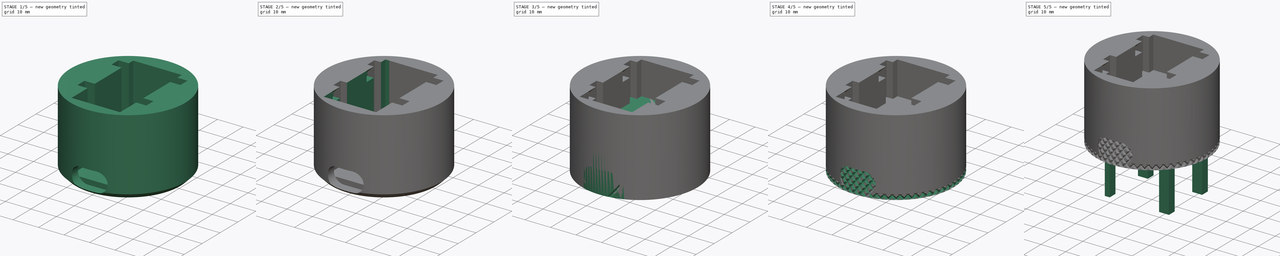
[diagram: build sequence overview — one tinted view per stage of 5, left to right]
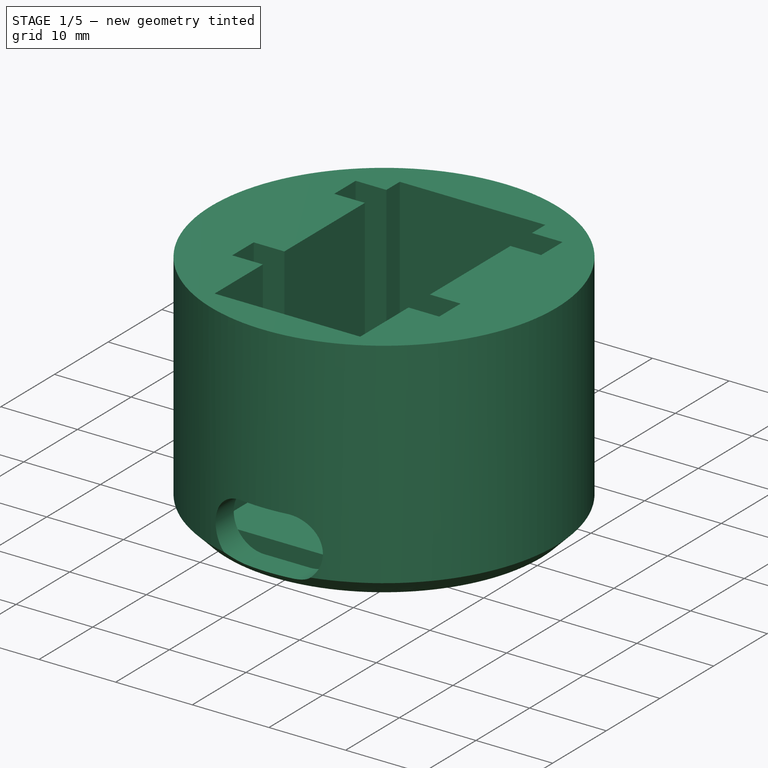
[diagram: stage 1 of 5 — iso view after this stage's code; geometry added in this stage tinted green]
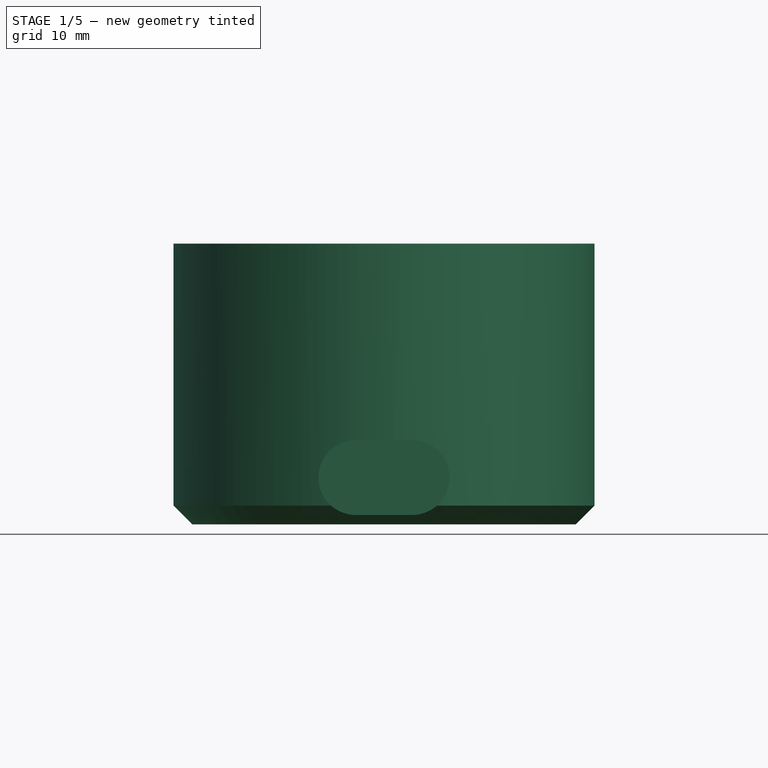
[diagram: stage 1 of 5 — front view after this stage's code; geometry added in this stage tinted green]
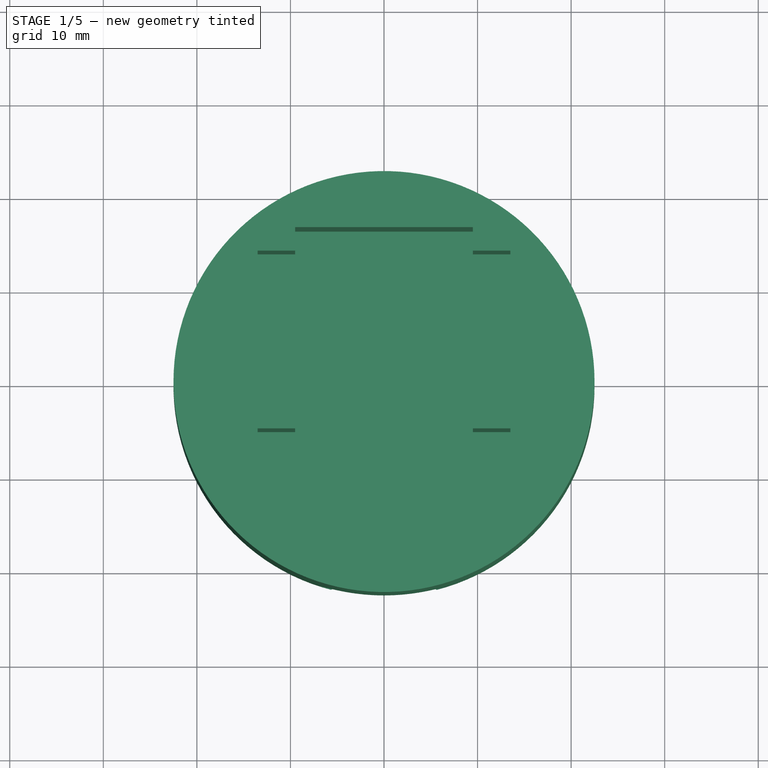
[diagram: stage 1 of 5 — top view after this stage's code; geometry added in this stage tinted green]
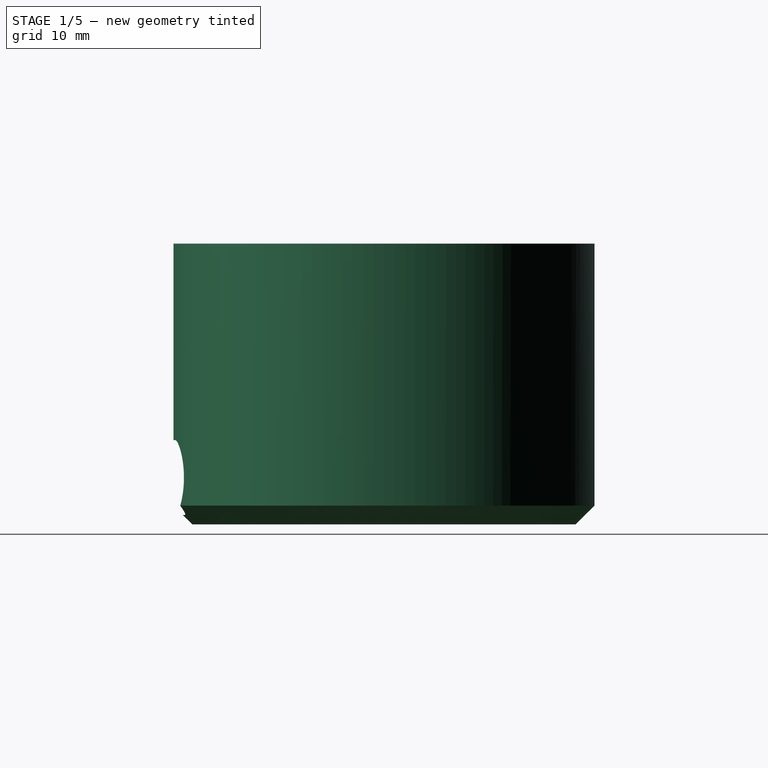
[diagram: stage 1 of 5 — right view after this stage's code; geometry added in this stage tinted green]
FCSTD DOCUMENT  (FreeCAD 0.21R33668 +26 (Git))
Label: VolumeKnob
License: All rights reserved
LicenseURL: http://en.wikipedia.org/wiki/All_rights_reserved
objects: Sketcher::SketchObject×18, PartDesign::Pocket×9, PartDesign::Pad×8, PartDesign::Body×5, PartDesign::Chamfer×4, PartDesign::SubtractiveHelix×2, PartDesign::PolarPattern×1
note: 70 computed .brp shape members not serialized (recipe doc carries the construction recipe); baked Part::Feature solids carry a one-line shape summary decoded from their .brp

FEATURE [PartDesign::Body] Body003  label="EncoderHolderBody"
  Group = -> [Sketch023,Pad007,Sketch024,Pocket015]
  Origin = -> Origin003
  Placement = pos=(0,-0.25,25.5) rot=(0,0,1;0rad)
  Tip = -> Pocket015
FEATURE [Sketcher::SketchObject] Sketch025  label="BodySketch"
  FullyConstrained = true
  MapMode = 5
  Support = -> [XY_Plane004]
  sketch-geometry (1):
    g0: Circle CenterX=0 CenterY=0 CenterZ=0 NormalX=0 NormalY=0 NormalZ=1 AngleXU=0 Radius=22.5
  constraints (2):
    c: Coincident(g0,g-1)
    c: Diameter(g0) = 45
FEATURE [PartDesign::Pad] Pad008
  Direction = (0,0,1)
  Length = 30
  Length2 = 10
  Profile = -> Sketch025
  ReferenceAxis = -> Sketch025 [N_Axis]
  Type = 0
FEATURE [PartDesign::Chamfer] Chamfer006
  Angle = 45
  Base = -> Pad008 [Edge2]
  BaseFeature = -> Pad008
  ChamferType = 0
  FlipDirection = false
  Size = 2
  Size2 = 1
  SupportTransform = false
  UseAllEdges = false
FEATURE [Sketcher::SketchObject] Sketch026  label="PCBPocketSketch001"
  FullyConstrained = true
  MapMode = 5
  Placement = pos=(0,0,30) rot=(0,0,1;0rad)
  Support = -> [Chamfer006]
  sketch-geometry (4):
    g0: LineSegment StartX=-9.5 StartY=16.5 StartZ=0 EndX=9.5 EndY=16.5 EndZ=0
    g1: LineSegment StartX=9.5 StartY=16.5 StartZ=0 EndX=9.5 EndY=-18 EndZ=0
    g2: LineSegment StartX=9.5 StartY=-18 StartZ=0 EndX=-9.5 EndY=-18 EndZ=0
    g3: LineSegment StartX=-9.5 StartY=-18 StartZ=0 EndX=-9.5 EndY=16.5 EndZ=0
  constraints (12):
    c: Horizontal(g0)
    c: Coincident(g1,g0)
    c: Vertical(g1)
    c: Coincident(g2,g1)
    c: Horizontal(g2)
    c: Coincident(g3,g2)
    c: Vertical(g3)
    c: Coincident(g3,g0)
    c: DistanceY(g-1,g0) = 16.5
    c: DistanceY(g1,g-1) = 18
    c: DistanceX(g0,g0) = 19
    c: DistanceX(g-1,g0) = 9.5
FEATURE [PartDesign::Pocket] Pocket016
  BaseFeature = -> Chamfer006
  Direction = (0,0,-1)
  Length = 27
  Length2 = 5
  Profile = -> Sketch026
  ReferenceAxis = -> Sketch026 [N_Axis]
  Type = 0
FEATURE [Sketcher::SketchObject] Sketch027  label="USBPocketSketch027"
  FullyConstrained = true
  MapMode = 5
  Placement = pos=(0,-18,0) rot=(0,0.707107,0.707107;3.14159rad)
  Support = -> [Pocket016]
  sketch-geometry (4):
    g0: ArcOfCircle CenterX=-3 CenterY=5 CenterZ=0 NormalX=0 NormalY=0 NormalZ=1 AngleXU=0 Radius=4 StartAngle=1.5708 EndAngle=4.71239
    g1: ArcOfCircle CenterX=3 CenterY=5 CenterZ=0 NormalX=0 NormalY=0 NormalZ=1 AngleXU=0 Radius=4 StartAngle=4.71239 EndAngle=7.85398
    g2: LineSegment StartX=-3 StartY=1 StartZ=0 EndX=3 EndY=1 EndZ=0
    g3: LineSegment StartX=3 StartY=9 StartZ=0 EndX=-3 EndY=9 EndZ=0
  constraints (10):
    c: Tangent(g0,g2) = -1.5708
    c: Tangent(g2,g1) = -1.5708
    c: Tangent(g1,g3) = -1.5708
    c: Tangent(g3,g0) = -1.5708
    c: Equal(g0,g1)
    c: Horizontal(g2)
    c: DistanceX(g0,g1) = 6
    c: DistanceY(g1,g1) = 8
    c: DistanceY(g-1,g0) = 1
    c: DistanceX(g0,g-1) = 3
FEATURE [PartDesign::Pocket] Pocket017
  BaseFeature = -> Pocket016
  Direction = (0,-1,2e-16)
  Length = 5
  Length2 = 5
  Profile = -> Sketch027
  ReferenceAxis = -> Sketch027 [N_Axis]
  Type = 0
FEATURE [Sketcher::SketchObject] Sketch028  label="AnkerSketch"
  FullyConstrained = true
  MapMode = 5
  Placement = pos=(0,0,30) rot=(0,0,1;0rad)
  Support = -> [Pocket017]
  sketch-geometry (16):
    g0: LineSegment StartX=-13.5 StartY=14 StartZ=0 EndX=-9.5 EndY=14 EndZ=0
    g1: LineSegment StartX=-9.5 StartY=14 StartZ=0 EndX=-9.5 EndY=10 EndZ=0
    g2: LineSegment StartX=-9.5 StartY=10 StartZ=0 EndX=-13.5 EndY=10 EndZ=0
    g3: LineSegment StartX=-13.5 StartY=10 StartZ=0 EndX=-13.5 EndY=14 EndZ=0
    g4: LineSegment StartX=-13.5 StartY=-5 StartZ=0 EndX=-9.5 EndY=-5 EndZ=0
    g5: LineSegment StartX=-9.5 StartY=-5 StartZ=0 EndX=-9.5 EndY=-9 EndZ=0
    g6: LineSegment StartX=-9.5 StartY=-9 StartZ=0 EndX=-13.5 EndY=-9 EndZ=0
    g7: LineSegment StartX=-13.5 StartY=-9 StartZ=0 EndX=-13.5 EndY=-5 EndZ=0
    g8: LineSegment StartX=9.5 StartY=-5 StartZ=0 EndX=13.5 EndY=-5 EndZ=0
    g9: LineSegment StartX=13.5 StartY=-5 StartZ=0 EndX=13.5 EndY=-9 EndZ=0
    g10: LineSegment StartX=13.5 StartY=-9 StartZ=0 EndX=9.5 EndY=-9 EndZ=0
    g11: LineSegment StartX=9.5 StartY=-9 StartZ=0 EndX=9.5 EndY=-5 EndZ=0
    g12: LineSegment StartX=9.5 StartY=14 StartZ=0 EndX=13.5 EndY=14 EndZ=0
    g13: LineSegment StartX=13.5 StartY=14 StartZ=0 EndX=13.5 EndY=10 EndZ=0
    g14: LineSegment StartX=13.5 StartY=10 StartZ=0 EndX=9.5 EndY=10 EndZ=0
    g15: LineSegment StartX=9.5 StartY=10 StartZ=0 EndX=9.5 EndY=14 EndZ=0
  constraints (48):
    c: Coincident(g0,g1)
    c: Coincident(g1,g2)
    c: Coincident(g2,g3)
    c: Coincident(g3,g0)
    c: Horizontal(g0)
    c: Horizontal(g2)
    c: Vertical(g1)
    c: Vertical(g3)
    c: Coincident(g4,g5)
    c: Coincident(g5,g6)
    c: Coincident(g6,g7)
    c: Coincident(g7,g4)
    c: Horizontal(g4)
    c: Horizontal(g6)
    c: Vertical(g5)
    c: Vertical(g7)
    c: Coincident(g8,g9)
    c: Coincident(g9,g10)
    c: Coincident(g10,g11)
    c: Coincident(g11,g8)
    c: Horizontal(g8)
    c: Horizontal(g10)
    c: Vertical(g9)
    c: Vertical(g11)
    c: Coincident(g12,g13)
    c: Coincident(g13,g14)
    c: Coincident(g14,g15)
    c: Coincident(g15,g12)
    c: Horizontal(g12)
    c: Horizontal(g14)
    c: Vertical(g13)
    c: Vertical(g15)
    c: DistanceX(g0,g0) = 4
    c: Equal(g0,g3)
    c: Equal(g0,g15)
    c: Equal(g0,g12)
    c: Equal(g0,g4)
    c: Equal(g0,g7)
    c: Equal(g0,g8)
    c: Equal(g0,g9)
    c: DistanceX(g1,g-1) = 9.5
    c: DistanceX(g-1,g14) = 9.5
    c: DistanceX(g4,g-1) = 9.5
    c: DistanceX(g-1,g8) = 9.5
    c: DistanceY(g-1,g14) = 10
    c: DistanceY(g8,g-1) = 5
    c: DistanceY(g4,g-1) = 5
    c: DistanceY(g-1,g1) = 10
FEATURE [PartDesign::Pocket] Pocket018
  BaseFeature = -> Pocket017
  Direction = (0,0,-1)
  Length = 23
  Length2 = 5
  Profile = -> Sketch028
  ReferenceAxis = -> Sketch028 [N_Axis]
  Type = 0
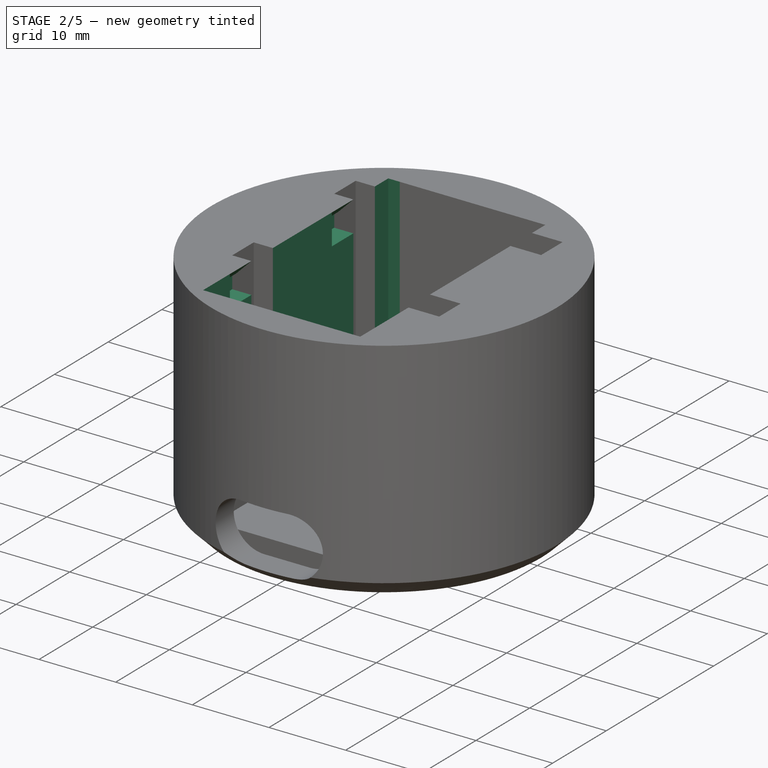
[diagram: stage 2 of 5 — iso view after this stage's code; geometry added in this stage tinted green]
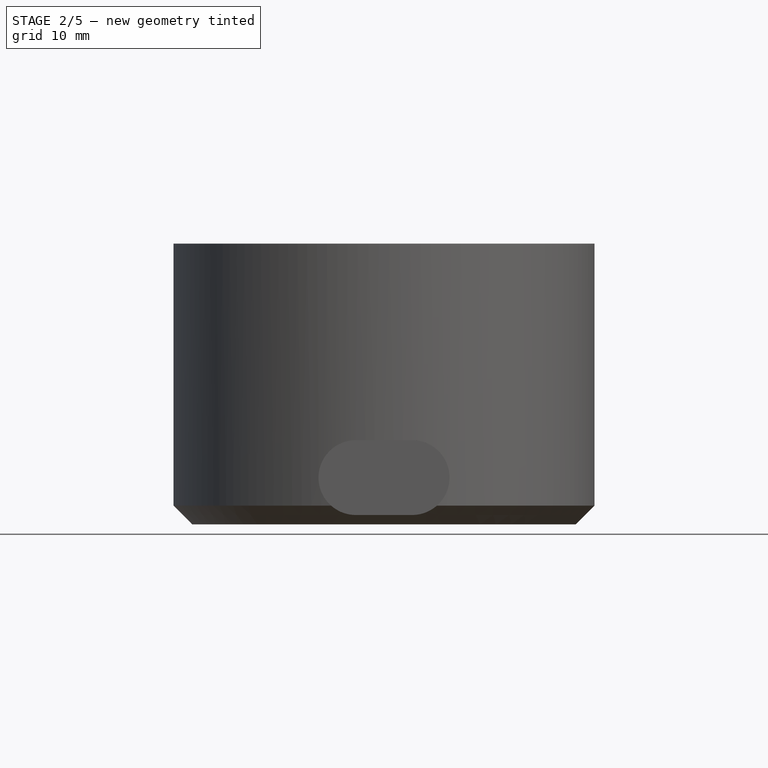
[diagram: stage 2 of 5 — front view after this stage's code; geometry added in this stage tinted green]
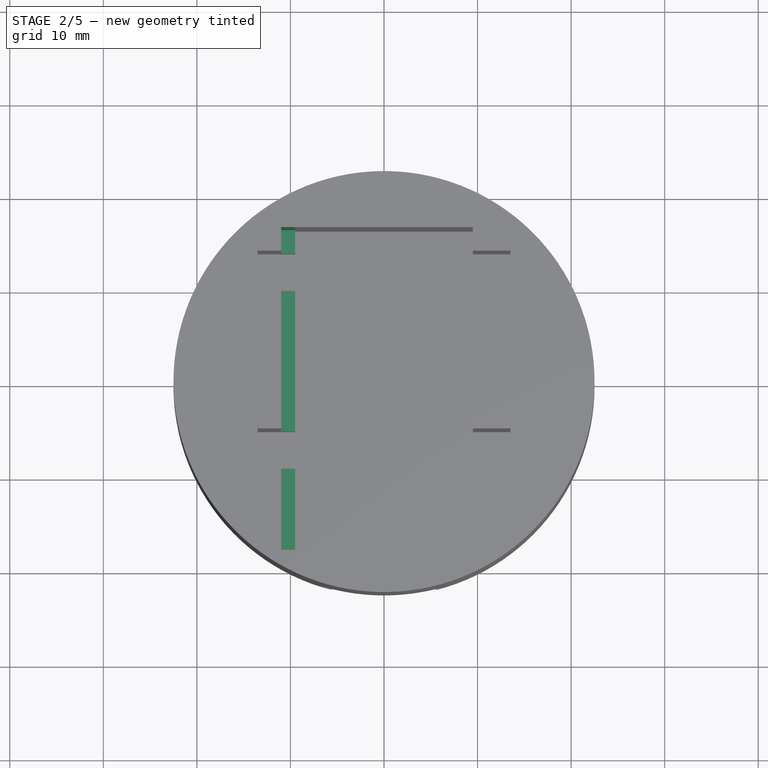
[diagram: stage 2 of 5 — top view after this stage's code; geometry added in this stage tinted green]
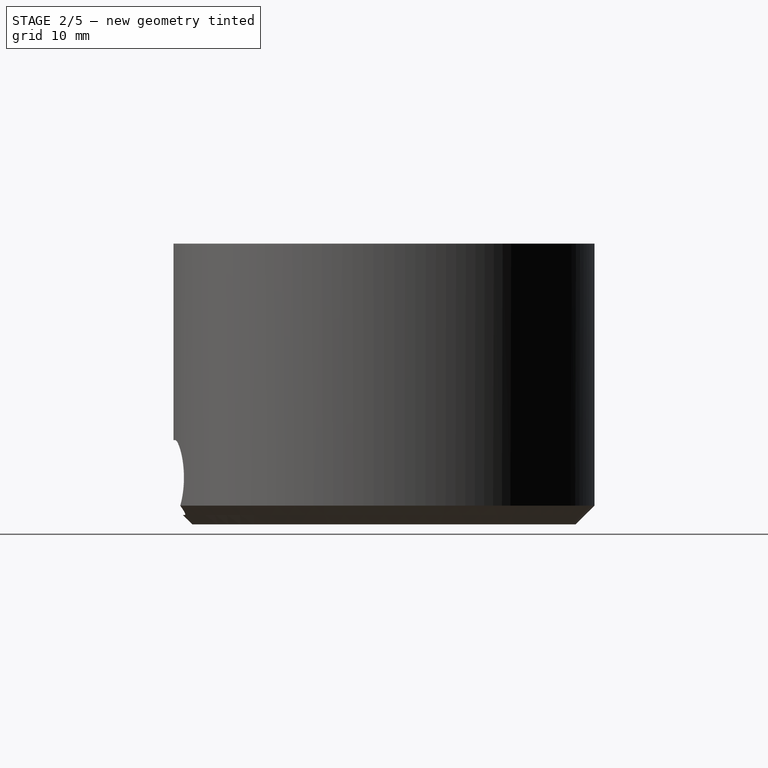
[diagram: stage 2 of 5 — right view after this stage's code; geometry added in this stage tinted green]
FEATURE [Sketcher::SketchObject] Sketch029
  FullyConstrained = true
  MapMode = 5
  Placement = pos=(-9.5,0,0) rot=(0.57735,0.57735,0.57735;2.0944rad)
  Support = -> [Pocket018]
  sketch-geometry (12):
    g0: LineSegment StartX=-13 StartY=26 StartZ=0 EndX=-9 EndY=26 EndZ=0
    g1: LineSegment StartX=-9 StartY=26 StartZ=0 EndX=-9 EndY=28 EndZ=0
    g2: LineSegment StartX=-9 StartY=28 StartZ=0 EndX=-13 EndY=28 EndZ=0
    g3: LineSegment StartX=-13 StartY=28 StartZ=0 EndX=-13 EndY=26 EndZ=0
    g4: LineSegment StartX=6 StartY=28 StartZ=0 EndX=10 EndY=28 EndZ=0
    g5: LineSegment StartX=10 StartY=28 StartZ=0 EndX=10 EndY=26 EndZ=0
    g6: LineSegment StartX=10 StartY=26 StartZ=0 EndX=6 EndY=26 EndZ=0
    g7: LineSegment StartX=6 StartY=26 StartZ=0 EndX=6 EndY=28 EndZ=0
    g8: LineSegment StartX=6 StartY=7 StartZ=0 EndX=10 EndY=7 EndZ=0
    g9: LineSegment StartX=10 StartY=7 StartZ=0 EndX=10 EndY=9 EndZ=0
    g10: LineSegment StartX=10 StartY=9 StartZ=0 EndX=6 EndY=9 EndZ=0
    g11: LineSegment StartX=6 StartY=9 StartZ=0 EndX=6 EndY=7 EndZ=0
  constraints (36):
    c: Coincident(g0,g1)
    c: Coincident(g1,g2)
    c: Coincident(g2,g3)
    c: Coincident(g3,g0)
    c: Horizontal(g0)
    c: Horizontal(g2)
    c: Vertical(g1)
    c: Vertical(g3)
    c: Coincident(g4,g5)
    c: Coincident(g5,g6)
    c: Coincident(g6,g7)
    c: Coincident(g7,g4)
    c: Horizontal(g4)
    c: Horizontal(g6)
    c: Vertical(g5)
    c: Vertical(g7)
    c: Coincident(g8,g9)
    c: Coincident(g9,g10)
    c: Coincident(g10,g11)
    c: Coincident(g11,g8)
    c: Horizontal(g8)
    c: Horizontal(g10)
    c: Vertical(g9)
    c: Vertical(g11)
    c: DistanceX(g4,g4) = 4
    c: DistanceY(g7,g7) = 2
    c: Equal(g4,g0)
    c: Equal(g4,g8)
    c: Equal(g7,g11)
    c: DistanceY(g-1,g6) = 26
    c: DistanceX(g-1,g6) = 6
    c: DistanceX(g1,g-1) = 9
    c: DistanceY(g-1,g1) = 28
    c: DistanceX(g-1,g10) = 6
    c: DistanceY(g-1,g10) = 9
    c: Equal(g7,g3)
FEATURE [PartDesign::Pocket] Pocket019
  BaseFeature = -> Pocket018
  Direction = (-1,0,0)
  Length = 4
  Length2 = 5
  Profile = -> Sketch029
  ReferenceAxis = -> Sketch029 [N_Axis]
  Type = 0
FEATURE [Sketcher::SketchObject] Sketch030
  FullyConstrained = true
  MapMode = 5
  Placement = pos=(9.5,0,0) rot=(0.57735,-0.57735,-0.57735;2.0944rad)
  Support = -> [Pocket019]
  sketch-geometry (16):
    g0: LineSegment StartX=-10 StartY=9 StartZ=0 EndX=-6 EndY=9 EndZ=0
    g1: LineSegment StartX=-6 StartY=9 StartZ=0 EndX=-6 EndY=7 EndZ=0
    g2: LineSegment StartX=-6 StartY=7 StartZ=0 EndX=-10 EndY=7 EndZ=0
    g3: LineSegment StartX=-10 StartY=7 StartZ=0 EndX=-10 EndY=9 EndZ=0
    g4: LineSegment StartX=-10 StartY=28 StartZ=0 EndX=-6 EndY=28 EndZ=0
    g5: LineSegment StartX=-6 StartY=28 StartZ=0 EndX=-6 EndY=26 EndZ=0
    g6: LineSegment StartX=-6 StartY=26 StartZ=0 EndX=-10 EndY=26 EndZ=0
    g7: LineSegment StartX=-10 StartY=26 StartZ=0 EndX=-10 EndY=28 EndZ=0
    g8: LineSegment StartX=9 StartY=9 StartZ=0 EndX=13 EndY=9 EndZ=0
    g9: LineSegment StartX=13 StartY=9 StartZ=0 EndX=13 EndY=7 EndZ=0
    g10: LineSegment StartX=13 StartY=7 StartZ=0 EndX=9 EndY=7 EndZ=0
    g11: LineSegment StartX=9 StartY=7 StartZ=0 EndX=9 EndY=9 EndZ=0
    g12: LineSegment StartX=9 StartY=26 StartZ=0 EndX=13 EndY=26 EndZ=0
    g13: LineSegment StartX=13 StartY=26 StartZ=0 EndX=13 EndY=28 EndZ=0
    g14: LineSegment StartX=13 StartY=28 StartZ=0 EndX=9 EndY=28 EndZ=0
    g15: LineSegment StartX=9 StartY=28 StartZ=0 EndX=9 EndY=26 EndZ=0
  constraints (48):
    c: Coincident(g0,g1)
    c: Coincident(g1,g2)
    c: Coincident(g2,g3)
    c: Coincident(g3,g0)
    c: Horizontal(g0)
    c: Horizontal(g2)
    c: Vertical(g1)
    c: Vertical(g3)
    c: Coincident(g4,g5)
    c: Coincident(g5,g6)
    c: Coincident(g6,g7)
    c: Coincident(g7,g4)
    c: Horizontal(g4)
    c: Horizontal(g6)
    c: Vertical(g5)
    c: Vertical(g7)
    c: Coincident(g8,g9)
    c: Coincident(g9,g10)
    c: Coincident(g10,g11)
    c: Coincident(g11,g8)
    c: Horizontal(g8)
    c: Horizontal(g10)
    c: Vertical(g9)
    c: Vertical(g11)
    c: Coincident(g12,g13)
    c: Coincident(g13,g14)
    c: Coincident(g14,g15)
    c: Coincident(g15,g12)
    c: Horizontal(g12)
    c: Horizontal(g14)
    c: Vertical(g13)
    c: Vertical(g15)
    c: DistanceX(g4,g4) = 4
    c: Equal(g4,g12)
    c: Equal(g4,g0)
    c: Equal(g4,g8)
    c: DistanceY(g5,g5) = 2
    c: Equal(g5,g1)
    c: Equal(g5,g13)
    c: Equal(g5,g9)
    c: DistanceY(g-1,g1) = 7
    c: DistanceY(g-1,g5) = 26
    c: DistanceX(g5,g-1) = 6
    c: DistanceY(g-1,g10) = 7
    c: DistanceY(g-1,g14) = 28
    c: DistanceX(g-1,g14) = 9
    c: DistanceX(g-1,g10) = 9
    c: DistanceX(g1,g-1) = 6
FEATURE [PartDesign::Pocket] Pocket020
  BaseFeature = -> Pocket019
  Direction = (1,0,0)
  Length = 4
  Length2 = 5
  Profile = -> Sketch030
  ReferenceAxis = -> Sketch030 [N_Axis]
  Type = 0
FEATURE [PartDesign::Body] Body001  label="TopBody"
  Group = -> [Sketch005,Pad002,Sketch006,Pocket003,Chamfer001,Sketch007,SubtractiveHelix,SubtractiveHelix001,PolarPattern,Sketch009,Pad003,Sketch011,Pad011]
  Origin = -> Origin001
  Placement = pos=(0,0,35) rot=(0,0,1;0rad)
  Tip = -> Pad011
FEATURE [Sketcher::SketchObject] Sketch034
  FullyConstrained = true
  MapMode = 5
  Placement = pos=(0,0,30) rot=(0,0,1;0rad)
  Support = -> [Pocket020]
  sketch-geometry (4):
    g0: LineSegment StartX=-11 StartY=16.5 StartZ=0 EndX=0 EndY=16.5 EndZ=0
    g1: LineSegment StartX=0 StartY=16.5 StartZ=0 EndX=0 EndY=-18 EndZ=0
    g2: LineSegment StartX=0 StartY=-18 StartZ=0 EndX=-11 EndY=-18 EndZ=0
    g3: LineSegment StartX=-11 StartY=-18 StartZ=0 EndX=-11 EndY=16.5 EndZ=0
  constraints (12):
    c: Coincident(g0,g1)
    c: Coincident(g1,g2)
    c: Coincident(g2,g3)
    c: Coincident(g3,g0)
    c: Horizontal(g0)
    c: Horizontal(g2)
    c: Vertical(g1)
    c: Vertical(g3)
    c: PointOnObject(g1,g-2)
    c: DistanceY(g1,g1) = 34.5
    c: DistanceX(g2,g2) = 11
    c: DistanceY(g1,g-1) = 18
FEATURE [PartDesign::Pocket] Pocket
  BaseFeature = -> Pocket020
  Direction = (0,0,-1)
  Length = 18
  Length2 = 5
  Profile = -> Sketch034
  ReferenceAxis = -> Sketch034 [N_Axis]
  Type = 0
FEATURE [PartDesign::Chamfer] Chamfer
  Angle = 45
  Base = -> Pocket [Edge63,Edge73,Edge69,Edge59,Edge143]
  BaseFeature = -> Pocket
  ChamferType = 1
  FlipDirection = false
  Size = 1.99
  Size2 = 3.99
  SupportTransform = false
  UseAllEdges = false
FEATURE [PartDesign::Chamfer] Chamfer007
  Angle = 45
  Base = -> Chamfer [Edge142,Edge158]
  BaseFeature = -> Chamfer
  ChamferType = 0
  FlipDirection = false
  Size = 1.99
  Size2 = 1
  SupportTransform = false
  UseAllEdges = false
FEATURE [PartDesign::Body] Body004  label="BottomBody"
  Group = -> [Sketch025,Pad008,Chamfer006,Sketch026,Pocket016,Sketch027,Pocket017,Sketch028,Pocket018,Sketch029,Pocket019,Sketch030,Pocket020,Sketch034,Pocket,Chamfer,Chamfer007]
  Origin = -> Origin004
  Tip = -> Chamfer007
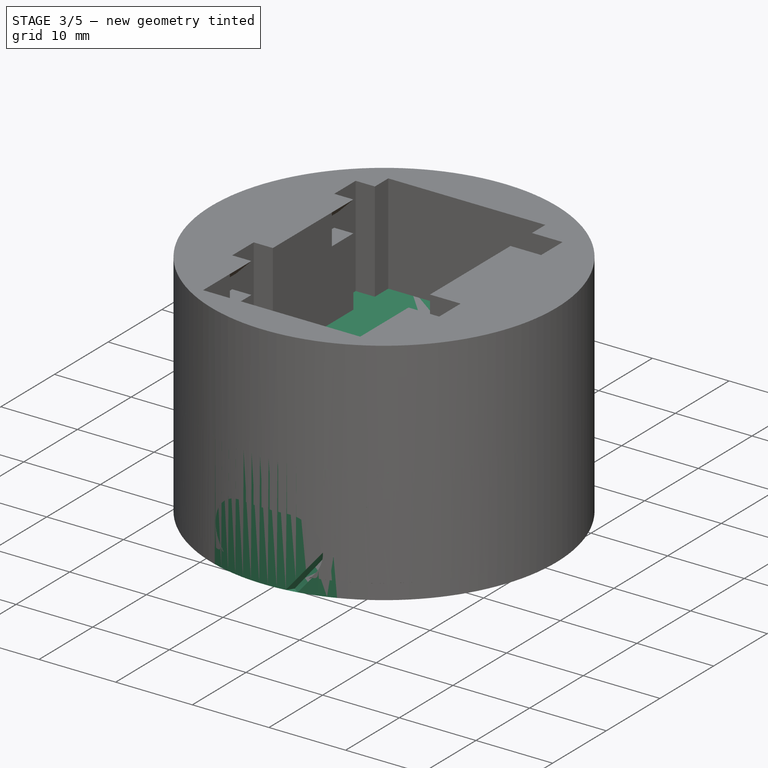
[diagram: stage 3 of 5 — iso view after this stage's code; geometry added in this stage tinted green]
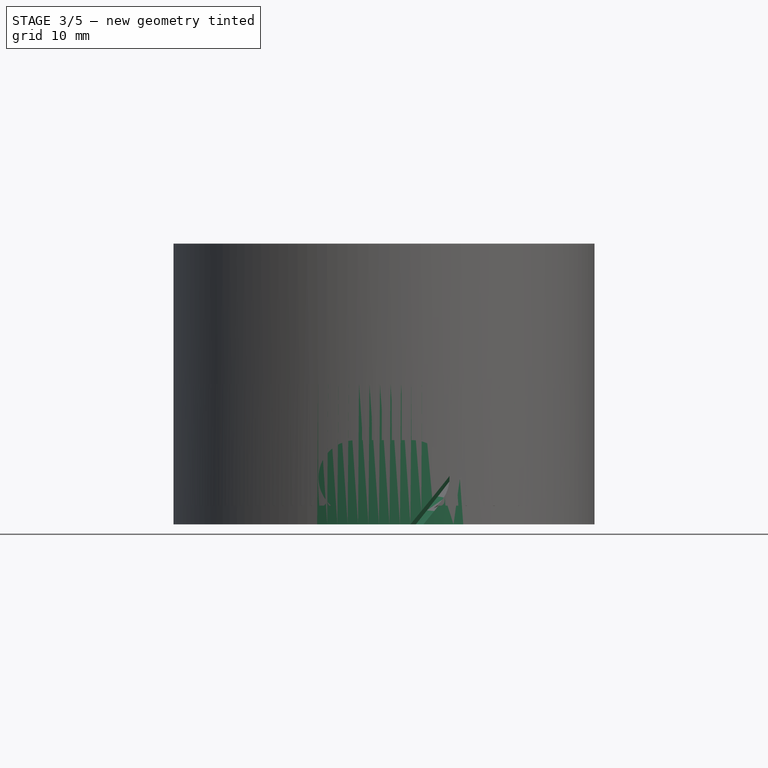
[diagram: stage 3 of 5 — front view after this stage's code; geometry added in this stage tinted green]
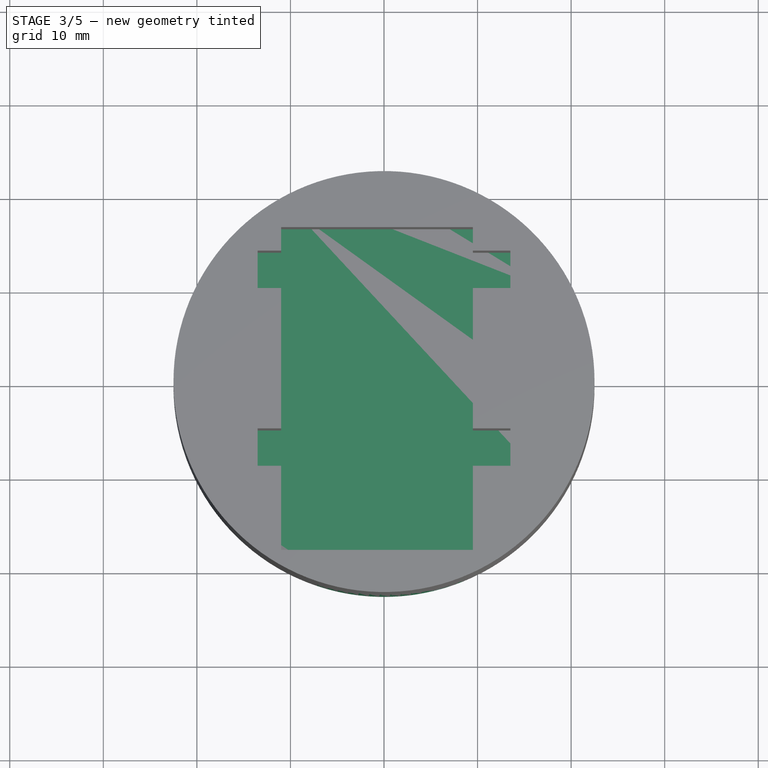
[diagram: stage 3 of 5 — top view after this stage's code; geometry added in this stage tinted green]
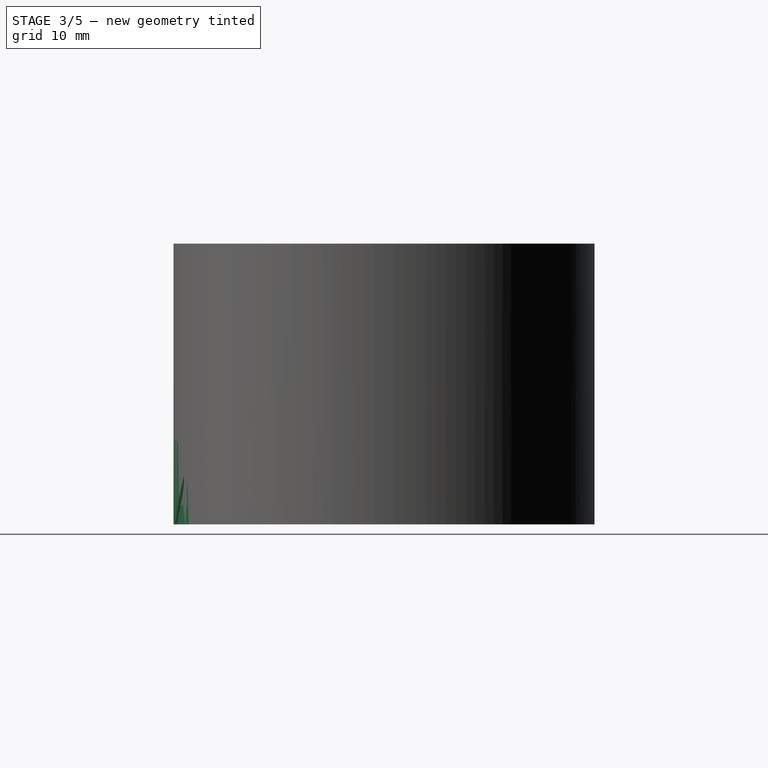
[diagram: stage 3 of 5 — right view after this stage's code; geometry added in this stage tinted green]
FEATURE [Sketcher::SketchObject] Sketch005
  FullyConstrained = true
  MapMode = 5
  Support = -> [XY_Plane001]
  sketch-geometry (1):
    g0: Circle CenterX=0 CenterY=0 CenterZ=0 NormalX=0 NormalY=0 NormalZ=1 AngleXU=0 Radius=22.5
  constraints (2):
    c: Coincident(g0,g-1)
    c: Diameter(g0) = 45
FEATURE [PartDesign::Pad] Pad002
  Direction = (0,0,1)
  Length = 17
  Length2 = 10
  Profile = -> Sketch005
  ReferenceAxis = -> Sketch005 [N_Axis]
  Type = 0
FEATURE [Sketcher::SketchObject] Sketch006
  FullyConstrained = true
  MapMode = 5
  Support = -> [XY_Plane001]
  sketch-geometry (1):
    g0: Circle CenterX=0 CenterY=0 CenterZ=0 NormalX=0 NormalY=0 NormalZ=1 AngleXU=0 Radius=20.5
  constraints (2):
    c: Coincident(g0,g-1)
    c: Diameter(g0) = 41
FEATURE [PartDesign::Pocket] Pocket003
  BaseFeature = -> Pad002
  Direction = (0,0,-1)
  Length = 15
  Length2 = 5
  Profile = -> Sketch006
  ReferenceAxis = -> Sketch006 [N_Axis]
  Reversed = true
  Type = 0
FEATURE [PartDesign::Chamfer] Chamfer001
  Angle = 45
  Base = -> Pocket003 [Edge3]
  BaseFeature = -> Pocket003
  ChamferType = 0
  FlipDirection = false
  Size = 2
  Size2 = 1
  SupportTransform = false
  UseAllEdges = false
FEATURE [Sketcher::SketchObject] Sketch007
  FullyConstrained = true
  MapMode = 5
  Placement = pos=(0,0,17) rot=(0,0,1;0rad)
  Support = -> [Chamfer001]
  sketch-geometry (6):
    g0: Circle CenterX=0 CenterY=0 CenterZ=0 NormalX=0 NormalY=0 NormalZ=1 AngleXU=0 Radius=22.5
    g1: LineSegment StartX=0 StartY=0 StartZ=0 EndX=15.402 EndY=-15.402 EndZ=0
    g2: LineSegment StartX=15.402 StartY=-15.402 StartZ=0 EndX=16.402 EndY=-15.402 EndZ=0
    g3: LineSegment StartX=16.402 StartY=-15.402 StartZ=0 EndX=16.402 EndY=-16.402 EndZ=0
    g4: LineSegment StartX=16.402 StartY=-16.402 StartZ=0 EndX=15.402 EndY=-16.402 EndZ=0
    g5: LineSegment StartX=15.402 StartY=-16.402 StartZ=0 EndX=15.402 EndY=-15.402 EndZ=0
  constraints (16):
    c: Coincident(g0,g-1)
    c: Diameter(g0) = 45
    c: Coincident(g1,g0)
    c: Angle(g1,g-1) = 0.785398
    c: Coincident(g2,g3)
    c: Coincident(g3,g4)
    c: Coincident(g4,g5)
    c: Coincident(g5,g2)
    c: Horizontal(g2)
    c: Horizontal(g4)
    c: Vertical(g3)
    c: Vertical(g5)
    c: PointOnObject(g4,g0)
    c: PointOnObject(g2,g0)
    c: DistanceX(g2,g2) = 1
    c: Coincident(g1,g2)
FEATURE [PartDesign::SubtractiveHelix] SubtractiveHelix  label="SubtractiveHelixRightHanded"
  Angle = 0
  Axis = (1e-16,1e-16,1)
  Base = (0,0,0)
  BaseFeature = -> Chamfer001
  Growth = 0
  HasBeenEdited = true
  Height = 17
  LeftHanded = false
  Mode = 2
  Outside = false
  Pitch = 170
  Profile = -> Sketch007
  ReferenceAxis = -> Z_Axis001
  Reversed = true
  Turns = 0.1
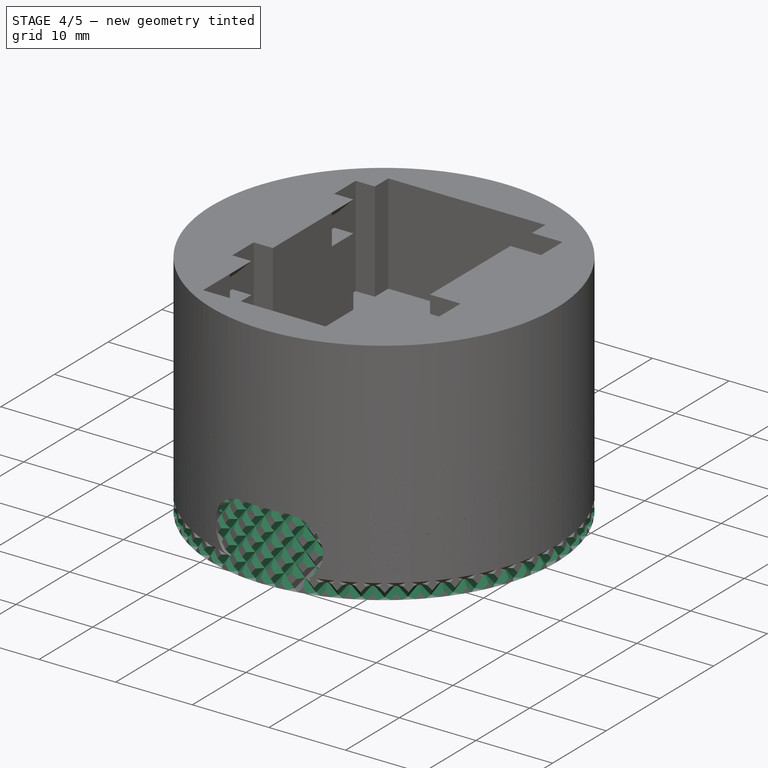
[diagram: stage 4 of 5 — iso view after this stage's code; geometry added in this stage tinted green]
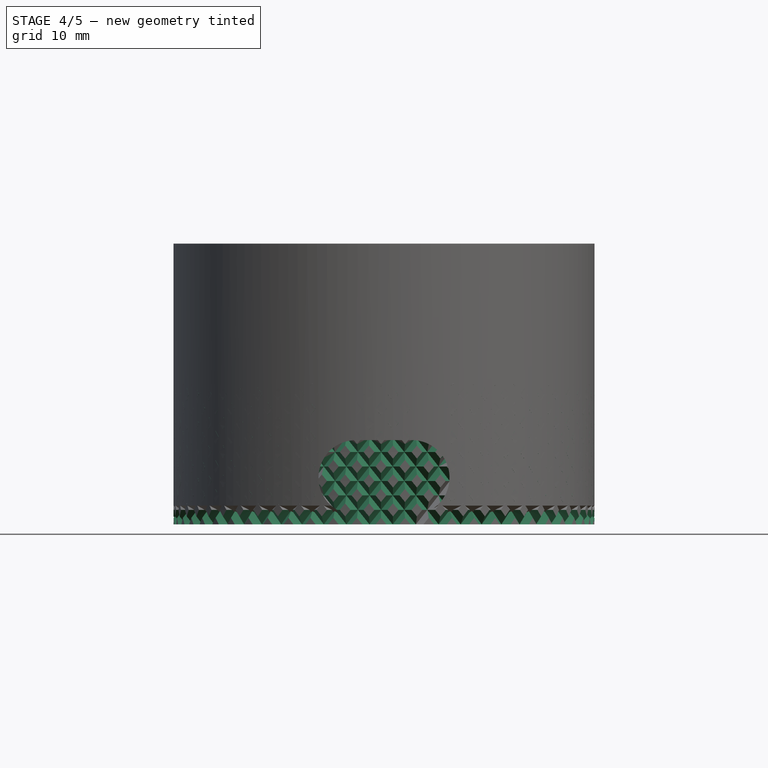
[diagram: stage 4 of 5 — front view after this stage's code; geometry added in this stage tinted green]
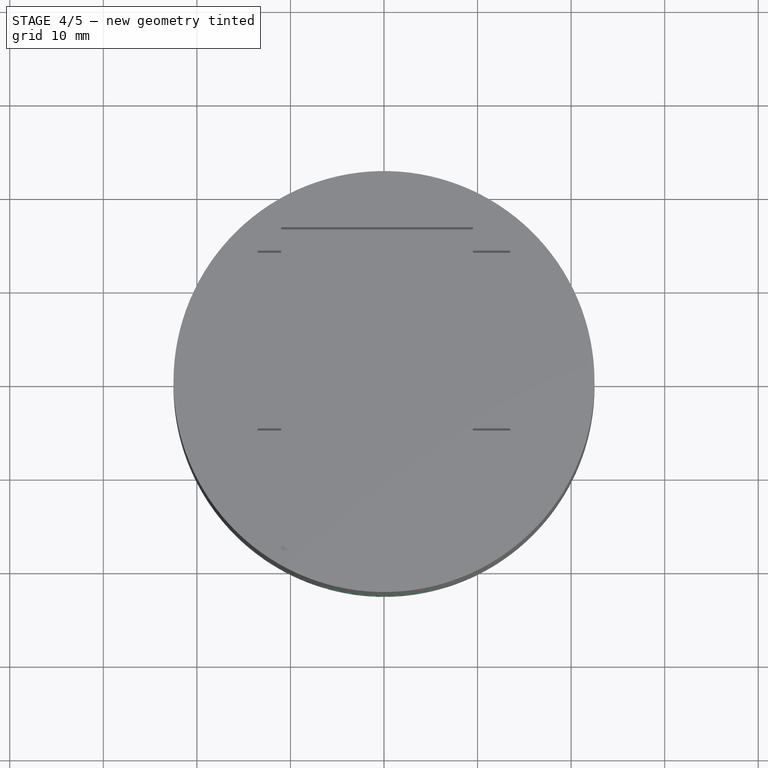
[diagram: stage 4 of 5 — top view after this stage's code; geometry added in this stage tinted green]
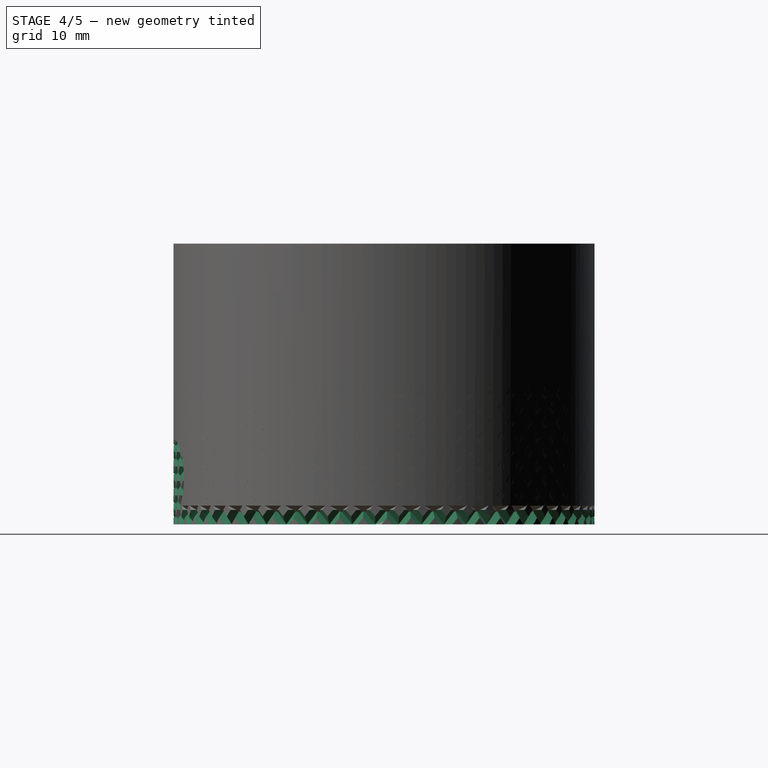
[diagram: stage 4 of 5 — right view after this stage's code; geometry added in this stage tinted green]
FEATURE [PartDesign::SubtractiveHelix] SubtractiveHelix001  label="SubtractiveHelixLeftHanded"
  Angle = 0
  Axis = (1e-16,1e-16,1)
  Base = (0,0,0)
  BaseFeature = -> SubtractiveHelix
  Growth = 0
  HasBeenEdited = true
  Height = 17
  LeftHanded = true
  Mode = 2
  Outside = false
  Pitch = 170
  Profile = -> Sketch007
  ReferenceAxis = -> Z_Axis001
  Reversed = true
  Turns = 0.1
FEATURE [PartDesign::PolarPattern] PolarPattern
  Angle = 360
  Axis = -> Sketch007 [N_Axis]
  BaseFeature = -> SubtractiveHelix001
  Occurrences = 55
  Originals = -> [SubtractiveHelix,SubtractiveHelix001]
FEATURE [Sketcher::SketchObject] Sketch009  label="EncoderGripSketch"
  FullyConstrained = true
  MapMode = 5
  Placement = pos=(0,0,15) rot=(1,0,0;3.14159rad)
  Support = -> [PolarPattern]
  sketch-geometry (2):
    g0: Circle CenterX=0 CenterY=0 CenterZ=0 NormalX=0 NormalY=0 NormalZ=1 AngleXU=0 Radius=5
    g1: Circle CenterX=0 CenterY=0 CenterZ=0 NormalX=0 NormalY=0 NormalZ=1 AngleXU=0 Radius=3.15
  constraints (4):
    c: Coincident(g0,g-1)
    c: Diameter(g0) = 10
    c: Coincident(g1,g0)
    c: Diameter(g1) = 6.3
FEATURE [PartDesign::Pad] Pad003
  BaseFeature = -> PolarPattern
  Direction = (0,0,-1)
  Length = 10
  Length2 = 10
  Profile = -> Sketch009
  ReferenceAxis = -> Sketch009 [N_Axis]
  Type = 0
FEATURE [PartDesign::Body] Body005  label="AnkerBody"
  Group = -> [Sketch031,Pad009,Sketch033,Pocket021,Sketch,Pad]
  Origin = -> Origin005
  Placement = pos=(0,0,28) rot=(0,0,1;0rad)
  Tip = -> Pad
FEATURE [PartDesign::Pad] Pad010
  Direction = (0,0,1)
  Length = 1.8
  Length2 = 10
  Profile = -> Sketch022
  ReferenceAxis = -> Sketch022 [N_Axis]
  Type = 0
FEATURE [PartDesign::Body] Body002  label="PCBHolderBody"
  Group = -> [Sketch022,Pad010]
  Origin = -> Origin002
  Placement = pos=(-0.5,-0.3,7) rot=(0,0,1;0rad)
  Tip = -> Pad010
FEATURE [PartDesign::Pad] Pad011
  BaseFeature = -> Pad003
  Direction = (0,0,-1)
  Length = 6
  Length2 = 10
  Profile = -> Sketch011
  ReferenceAxis = -> Sketch011 [N_Axis]
  Type = 0
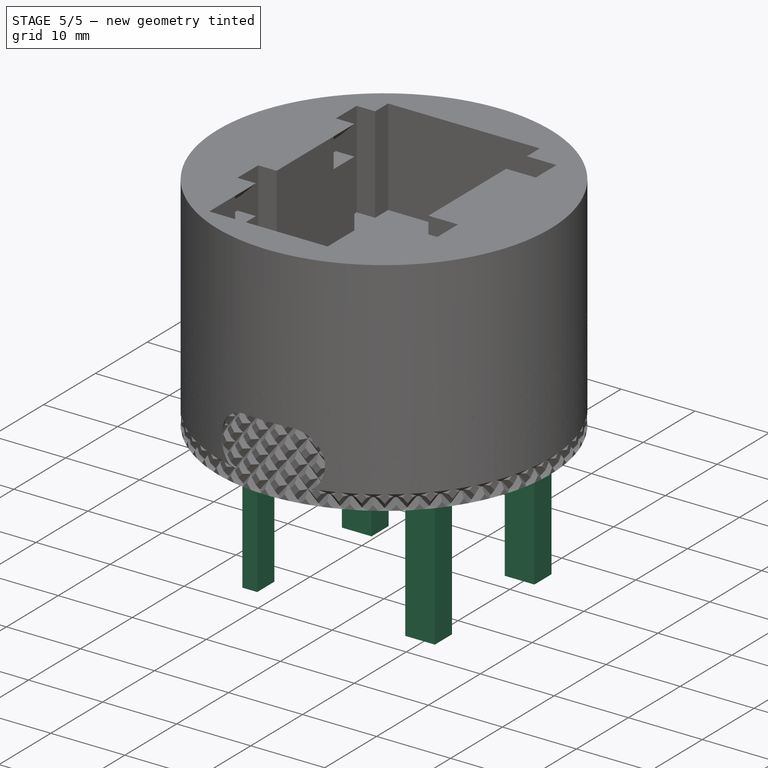
[diagram: stage 5 of 5 — iso view after this stage's code; geometry added in this stage tinted green]
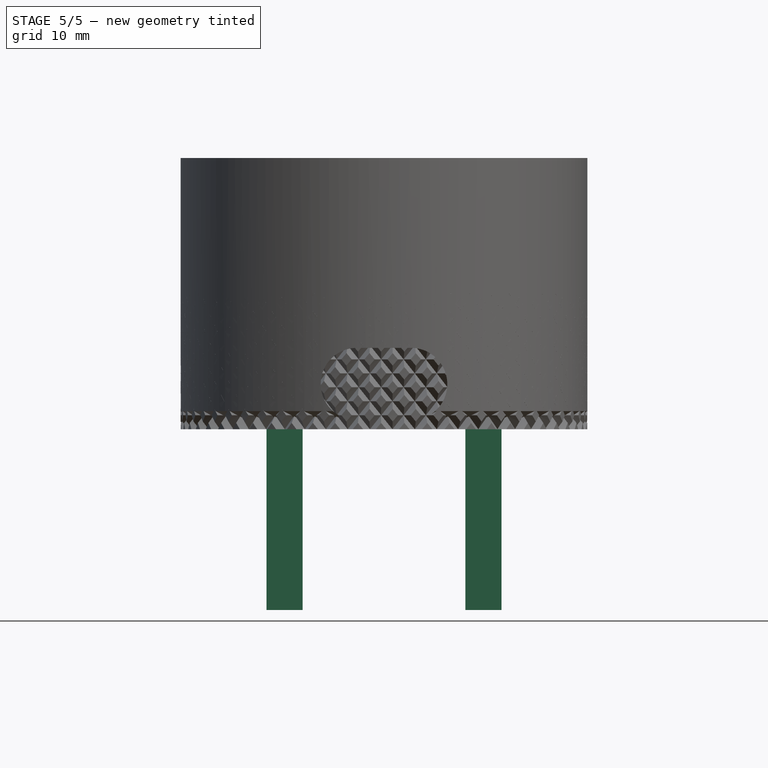
[diagram: stage 5 of 5 — front view after this stage's code; geometry added in this stage tinted green]
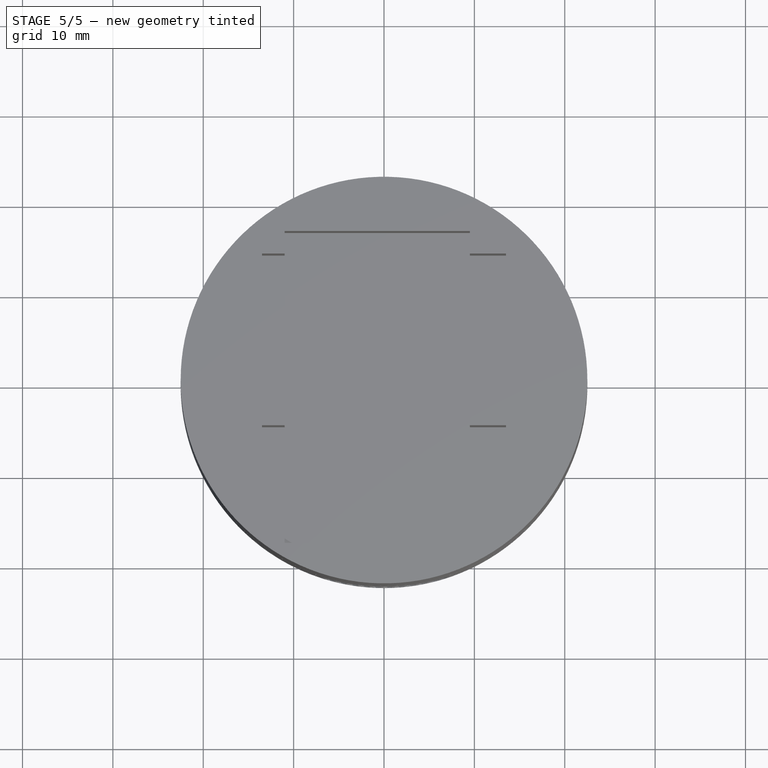
[diagram: stage 5 of 5 — top view after this stage's code; geometry added in this stage tinted green]
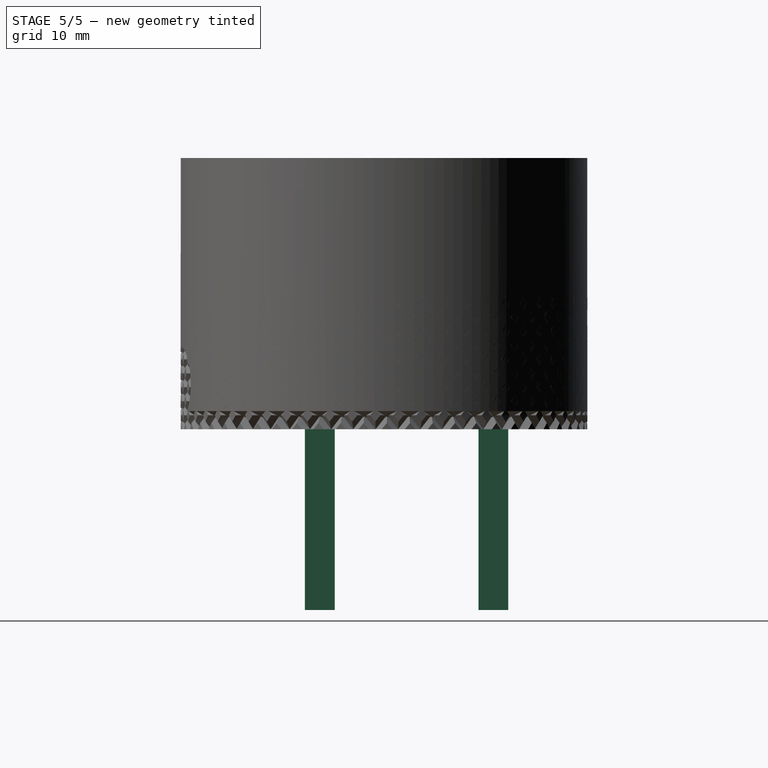
[diagram: stage 5 of 5 — right view after this stage's code; geometry added in this stage tinted green]
FEATURE [Sketcher::SketchObject] Sketch011
  FullyConstrained = true
  MapMode = 5
  Placement = pos=(0,0,15) rot=(1,0,0;3.14159rad)
  Support = -> [Pad003]
  sketch-geometry (4):
    g0: ArcOfCircle CenterX=0 CenterY=0 CenterZ=0 NormalX=0 NormalY=0 NormalZ=1 AngleXU=0 Radius=3.125 StartAngle=3.70728 EndAngle=5.71749
    g1: LineSegment StartX=-2.63818 StartY=-1.675 StartZ=0 EndX=2.63818 EndY=-1.675 EndZ=0
    g2: LineSegment StartX=0 StartY=-1.675 StartZ=0 EndX=0 EndY=-3.125 EndZ=0
    g3: LineSegment StartX=0 StartY=-1.675 StartZ=0 EndX=0 EndY=0 EndZ=0
  constraints (12):
    c: Coincident(g0,g-1)
    c: Diameter(g0) = 6.25
    c: Horizontal(g1)
    c: Coincident(g0,g1)
    c: Coincident(g0,g1)
    c: PointOnObject(g2,g1)
    c: PointOnObject(g2,g0)
    c: Vertical(g2)
    c: Coincident(g3,g2)
    c: Coincident(g3,g0)
    c: Vertical(g3)
    c: DistanceY(g2,g2) = 1.45
FEATURE [Sketcher::SketchObject] Sketch022
  FullyConstrained = true
  MapMode = 5
  Support = -> [XY_Plane002]
  sketch-geometry (12):
    g0: LineSegment StartX=-1.6 StartY=-8.3 StartZ=0 EndX=9.4 EndY=-8.3 EndZ=0
    g1: GeomPoint X=0 Y=0 Z=0
    g2: LineSegment StartX=-12.4 StartY=14 StartZ=0 EndX=13.2 EndY=14 EndZ=0
    g3: LineSegment StartX=-12.4 StartY=14 StartZ=0 EndX=-12.4 EndY=10.7 EndZ=0
    g4: LineSegment StartX=-12.4 StartY=10.7 StartZ=0 EndX=-1.6 EndY=10.7 EndZ=0
    g5: LineSegment StartX=13.2 StartY=14 StartZ=0 EndX=13.2 EndY=10.7 EndZ=0
    g6: LineSegment StartX=13.2 StartY=10.7 StartZ=0 EndX=9.4 EndY=10.7 EndZ=0
    g7: LineSegment StartX=9.4 StartY=10.7 StartZ=0 EndX=9.4 EndY=-5 EndZ=0
    g8: LineSegment StartX=9.4 StartY=-5 StartZ=0 EndX=13.2 EndY=-5 EndZ=0
    g9: LineSegment StartX=13.2 StartY=-5 StartZ=0 EndX=13.2 EndY=-8.3 EndZ=0
    g10: LineSegment StartX=13.2 StartY=-8.3 StartZ=0 EndX=9.4 EndY=-8.3 EndZ=0
    g11: LineSegment StartX=-1.6 StartY=10.7 StartZ=0 EndX=-1.6 EndY=-8.3 EndZ=0
  constraints (34):
    c: Horizontal(g0)
    c: Coincident(g1,g-1)
    c: Horizontal(g2)
    c: DistanceY(g1,g2) = 14
    c: Coincident(g3,g2)
    c: Vertical(g3)
    c: Coincident(g4,g3)
    c: Horizontal(g4)
    c: DistanceY(g3,g3) = 3.3
    c: Coincident(g5,g2)
    c: Vertical(g5)
    c: Coincident(g6,g5)
    c: Horizontal(g6)
    c: Equal(g3,g5)
    c: Coincident(g7,g6)
    c: Vertical(g7)
    c: Coincident(g8,g7)
    c: Horizontal(g8)
    c: Coincident(g9,g8)
    c: Vertical(g9)
    c: Coincident(g10,g9)
    c: Horizontal(g10)
    c: Vertical(g11)
    c: Equal(g3,g9)
    c: Coincident(g0,g11)
    c: DistanceX(g1,g6) = 9.4
    c: DistanceY(g7,g7) = 15.7
    c: DistanceX(g0,g0) = 11
    c: DistanceX(g2,g2) = 25.6
    c: DistanceX(g6,g6) = 3.8
    c: Equal(g6,g8)
    c: Equal(g8,g10)
    c: Coincident(g11,g4)
    c: Coincident(g0,g10)
FEATURE [Sketcher::SketchObject] Sketch023
  FullyConstrained = true
  MapMode = 5
  Support = -> [XY_Plane003]
  sketch-geometry (16):
    g0: LineSegment StartX=-12.8 StartY=14 StartZ=0 EndX=12.8 EndY=14 EndZ=0
    g1: LineSegment StartX=12.8 StartY=14 StartZ=0 EndX=12.8 EndY=10.7 EndZ=0
    g2: LineSegment StartX=12.8 StartY=10.7 StartZ=0 EndX=9 EndY=10.7 EndZ=0
    g3: LineSegment StartX=9 StartY=10.7 StartZ=0 EndX=9 EndY=-4.9 EndZ=0
    g4: LineSegment StartX=9 StartY=-4.9 StartZ=0 EndX=12.8 EndY=-4.9 EndZ=0
    g5: LineSegment StartX=12.8 StartY=-4.9 StartZ=0 EndX=12.8 EndY=-8.2 EndZ=0
    g6: LineSegment StartX=12.8 StartY=-8.2 StartZ=0 EndX=9 EndY=-8.2 EndZ=0
    g7: LineSegment StartX=9 StartY=-8.2 StartZ=0 EndX=9 EndY=-12 EndZ=0
    g8: LineSegment StartX=9 StartY=-12 StartZ=0 EndX=-9 EndY=-12 EndZ=0
    g9: LineSegment StartX=-9 StartY=-12 StartZ=0 EndX=-9 EndY=-8.2 EndZ=0
    g10: LineSegment StartX=-9 StartY=-8.2 StartZ=0 EndX=-12.8 EndY=-8.2 EndZ=0
    g11: LineSegment StartX=-12.8 StartY=-4.9 StartZ=0 EndX=-9 EndY=-4.9 EndZ=0
    g12: LineSegment StartX=-9 StartY=-4.9 StartZ=0 EndX=-9 EndY=10.7 EndZ=0
    g13: LineSegment StartX=-9 StartY=10.7 StartZ=0 EndX=-12.8 EndY=10.7 EndZ=0
    g14: LineSegment StartX=-12.8 StartY=10.7 StartZ=0 EndX=-12.8 EndY=14 EndZ=0
    g15: LineSegment StartX=-12.8 StartY=-8.2 StartZ=0 EndX=-12.8 EndY=-4.9 EndZ=0
  constraints (48):
    c: Horizontal(g0)
    c: Coincident(g1,g0)
    c: Vertical(g1)
    c: Coincident(g2,g1)
    c: Horizontal(g2)
    c: Coincident(g3,g2)
    c: Vertical(g3)
    c: Coincident(g4,g3)
    c: Horizontal(g4)
    c: Coincident(g5,g4)
    c: Vertical(g5)
    c: Coincident(g6,g5)
    c: Horizontal(g6)
    c: Coincident(g7,g6)
    c: Vertical(g7)
    c: Coincident(g8,g7)
    c: Horizontal(g8)
    c: Vertical(g9)
    c: Coincident(g10,g9)
    c: Horizontal(g10)
    c: Horizontal(g11)
    c: Coincident(g12,g11)
    c: Vertical(g12)
    c: Coincident(g13,g12)
    c: Horizontal(g13)
    c: DistanceX(g13,g13) = 3.8
    c: Equal(g13,g10)
    c: Equal(g13,g2)
    c: Equal(g13,g4)
    c: Equal(g13,g6)
    c: Coincident(g14,g13)
    c: Vertical(g14)
    c: Coincident(g0,g14)
    c: DistanceY(g14,g14) = 3.3
    c: DistanceY(g3,g3) = 15.6
    c: Equal(g3,g12)
    c: DistanceY(g-1,g0) = 14
    c: Equal(g14,g1)
    c: Equal(g5,g14)
    c: Coincident(g15,g10)
    c: Vertical(g15)
    c: Coincident(g11,g15)
    c: Equal(g13,g11)
    c: Equal(g14,g15)
    c: Coincident(g8,g9)
    c: DistanceY(g7,g0) = 26
    c: DistanceX(g0,g0) = 25.6
    c: DistanceX(g12,g-1) = 9
FEATURE [PartDesign::Pad] Pad007
  Direction = (0,0,1)
  Length = 1.8
  Length2 = 10
  Profile = -> Sketch023
  ReferenceAxis = -> Sketch023 [N_Axis]
  Type = 0
FEATURE [Sketcher::SketchObject] Sketch024
  FullyConstrained = true
  MapMode = 5
  Placement = pos=(0,0,1.8) rot=(0,0,1;0rad)
  Support = -> [Pad007]
  sketch-geometry (1):
    g0: Circle CenterX=0 CenterY=4 CenterZ=0 NormalX=0 NormalY=0 NormalZ=1 AngleXU=0 Radius=4
  constraints (3):
    c: Diameter(g0) = 8
    c: DistanceY(g-1,g0) = 4
    c: DistanceX(g-1,g0) = 0
FEATURE [PartDesign::Pocket] Pocket015
  BaseFeature = -> Pad007
  Direction = (0,0,-1)
  Length = 50
  Length2 = 5
  Profile = -> Sketch024
  ReferenceAxis = -> Sketch024 [N_Axis]
  Type = 0
FEATURE [Sketcher::SketchObject] Sketch031
  FullyConstrained = true
  MapMode = 5
  Support = -> [XY_Plane005]
  sketch-geometry (12):
    g0: LineSegment StartX=-13 StartY=13.75 StartZ=0 EndX=13 EndY=13.75 EndZ=0
    g1: LineSegment StartX=-13 StartY=-8.75 StartZ=0 EndX=13 EndY=-8.75 EndZ=0
    g2: LineSegment StartX=-13 StartY=-8.75 StartZ=0 EndX=-13 EndY=-5.45 EndZ=0
    g3: LineSegment StartX=-13 StartY=-5.45 StartZ=0 EndX=-9 EndY=-5.45 EndZ=0
    g4: LineSegment StartX=-9 StartY=-5.45 StartZ=0 EndX=-9 EndY=10.45 EndZ=0
    g5: LineSegment StartX=-9 StartY=10.45 StartZ=0 EndX=-13 EndY=10.45 EndZ=0
    g6: LineSegment StartX=-13 StartY=13.75 StartZ=0 EndX=-13 EndY=10.45 EndZ=0
    g7: LineSegment StartX=13 StartY=13.75 StartZ=0 EndX=13 EndY=10.45 EndZ=0
    g8: LineSegment StartX=13 StartY=10.45 StartZ=0 EndX=9 EndY=10.45 EndZ=0
    g9: LineSegment StartX=9 StartY=10.45 StartZ=0 EndX=9 EndY=-5.45 EndZ=0
    g10: LineSegment StartX=9 StartY=-5.45 StartZ=0 EndX=13 EndY=-5.45 EndZ=0
    g11: LineSegment StartX=13 StartY=-8.75 StartZ=0 EndX=13 EndY=-5.45 EndZ=0
  constraints (36):
    c: Horizontal(g0)
    c: Horizontal(g1)
    c: DistanceX(g0,g0) = 26
    c: DistanceY(g1,g0) = 22.5
    c: DistanceY(g1,g-1) = 8.75
    c: Coincident(g2,g1)
    c: Vertical(g2)
    c: Coincident(g3,g2)
    c: Horizontal(g3)
    c: Coincident(g4,g3)
    c: Vertical(g4)
    c: Coincident(g5,g4)
    c: Horizontal(g5)
    c: Coincident(g6,g0)
    c: Vertical(g6)
    c: Coincident(g5,g6)
    c: Coincident(g7,g0)
    c: Vertical(g7)
    c: Horizontal(g8)
    c: Coincident(g9,g8)
    c: Vertical(g9)
    c: DistanceY(g6,g6) = 3.3
    c: DistanceX(g4,g8) = 18
    c: DistanceX(g-1,g8) = 9
    c: Equal(g6,g7)
    c: Equal(g6,g2)
    c: Coincident(g7,g8)
    c: Equal(g4,g9)
    c: Equal(g5,g3)
    c: Coincident(g10,g9)
    c: Horizontal(g10)
    c: Coincident(g11,g1)
    c: Vertical(g11)
    c: Coincident(g11,g10)
    c: Equal(g5,g8)
    c: Equal(g5,g10)
FEATURE [PartDesign::Pad] Pad009
  Direction = (0,0,1)
  Length = 1.8
  Length2 = 10
  Profile = -> Sketch031
  ReferenceAxis = -> Sketch031 [N_Axis]
  Type = 0
FEATURE [Sketcher::SketchObject] Sketch033
  FullyConstrained = true
  MapMode = 5
  Placement = pos=(0,0,2) rot=(0,0,1;0rad)
  sketch-geometry (1):
    g0: Circle CenterX=0 CenterY=0 CenterZ=0 NormalX=0 NormalY=0 NormalZ=1 AngleXU=0 Radius=4
  constraints (2):
    c: Coincident(g0,g-1)
    c: Diameter(g0) = 8
FEATURE [PartDesign::Pocket] Pocket021
  BaseFeature = -> Pad009
  Direction = (0,0,-1)
  Length = 5
  Length2 = 5
  Profile = -> Sketch033
  ReferenceAxis = -> Sketch033 [N_Axis]
  Type = 0
FEATURE [Sketcher::SketchObject] Sketch  label="LegsSketch"
  ExternalGeometry = -> [Pad009]
  FullyConstrained = true
  MapMode = 5
  Placement = pos=(0,0,0) rot=(1,0,0;3.14159rad)
  Support = -> [Pad009]
  sketch-geometry (16):
    g0: LineSegment StartX=-13 StartY=8.75 StartZ=0 EndX=-11 EndY=8.75 EndZ=0
    g1: LineSegment StartX=-11 StartY=8.75 StartZ=0 EndX=-11 EndY=5.45 EndZ=0
    g2: LineSegment StartX=-13 StartY=5.45 StartZ=0 EndX=-13 EndY=8.75 EndZ=0
    g3: LineSegment StartX=13 StartY=8.75 StartZ=0 EndX=9 EndY=8.75 EndZ=0
    g4: LineSegment StartX=9 StartY=8.75 StartZ=0 EndX=9 EndY=5.45 EndZ=0
    g5: LineSegment StartX=9 StartY=5.45 StartZ=0 EndX=13 EndY=5.45 EndZ=0
    g6: LineSegment StartX=13 StartY=5.45 StartZ=0 EndX=13 EndY=8.75 EndZ=0
    g7: LineSegment StartX=9 StartY=-10.45 StartZ=0 EndX=13 EndY=-10.45 EndZ=0
    g8: LineSegment StartX=13 StartY=-10.45 StartZ=0 EndX=13 EndY=-13.75 EndZ=0
    g9: LineSegment StartX=13 StartY=-13.75 StartZ=0 EndX=9 EndY=-13.75 EndZ=0
    g10: LineSegment StartX=9 StartY=-13.75 StartZ=0 EndX=9 EndY=-10.45 EndZ=0
    g11: LineSegment StartX=-9 StartY=-10.45 StartZ=0 EndX=-13 EndY=-10.45 EndZ=0
    g12: LineSegment StartX=-13 StartY=-10.45 StartZ=0 EndX=-13 EndY=-13.75 EndZ=0
    g13: LineSegment StartX=-13 StartY=-13.75 StartZ=0 EndX=-9 EndY=-13.75 EndZ=0
    g14: LineSegment StartX=-9 StartY=-13.75 StartZ=0 EndX=-9 EndY=-10.45 EndZ=0
    g15: LineSegment StartX=-13 StartY=5.45 StartZ=0 EndX=-11 EndY=5.45 EndZ=0
  constraints (41):
    c: Coincident(g0,g1)
    c: Coincident(g2,g0)
    c: Horizontal(g0)
    c: Vertical(g1)
    c: Vertical(g2)
    c: Coincident(g0,g-4)
    c: Coincident(g3,g4)
    c: Coincident(g4,g5)
    c: Coincident(g5,g6)
    c: Coincident(g6,g3)
    c: Horizontal(g3)
    c: Horizontal(g5)
    c: Vertical(g4)
    c: Vertical(g6)
    c: Coincident(g3,g-5)
    c: Coincident(g4,g-6)
    c: Coincident(g7,g8)
    c: Coincident(g8,g9)
    c: Coincident(g9,g10)
    c: Coincident(g10,g7)
    c: Horizontal(g7)
    c: Horizontal(g9)
    c: Vertical(g8)
    c: Vertical(g10)
    c: Coincident(g7,g-7)
    c: Coincident(g8,g-9)
    c: Coincident(g11,g12)
    c: Coincident(g12,g13)
    c: Coincident(g13,g14)
    c: Coincident(g14,g11)
    c: Horizontal(g11)
    c: Horizontal(g13)
    c: Vertical(g12)
    c: Vertical(g14)
    c: Coincident(g11,g-11)
    c: Coincident(g12,g-10)
    c: DistanceX(g0,g0) = 2
    c: Coincident(g15,g2)
    c: Coincident(g15,g1)
    c: Horizontal(g15)
    c: DistanceY(g2,g2) = 3.3
FEATURE [PartDesign::Pad] Pad
  BaseFeature = -> Pocket021
  Direction = (0,0,-1)
  Length = 20
  Length2 = 10
  Profile = -> Sketch
  ReferenceAxis = -> Sketch [N_Axis]
  Type = 0
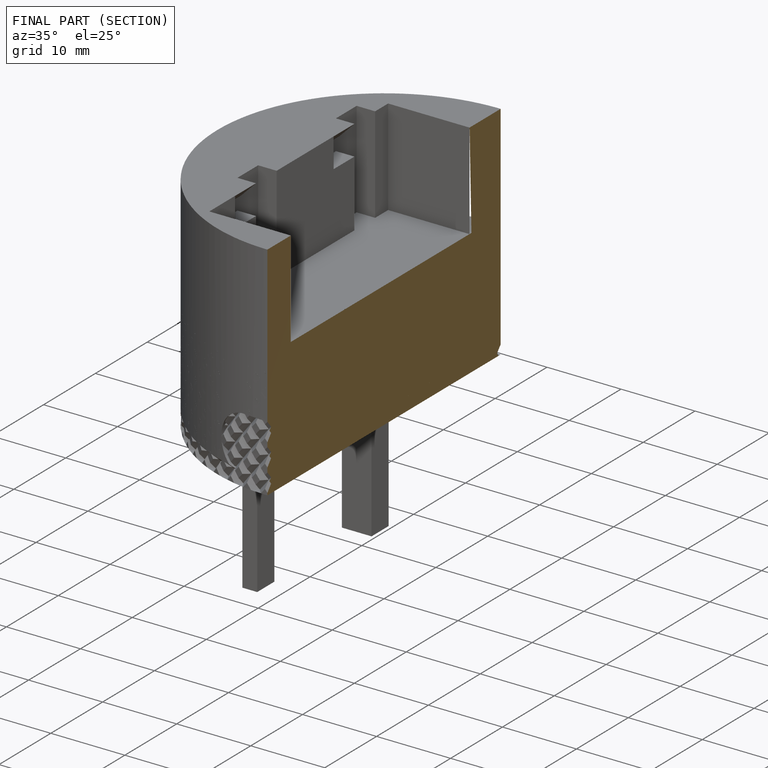
[diagram: finished part — half-section view (interior)]
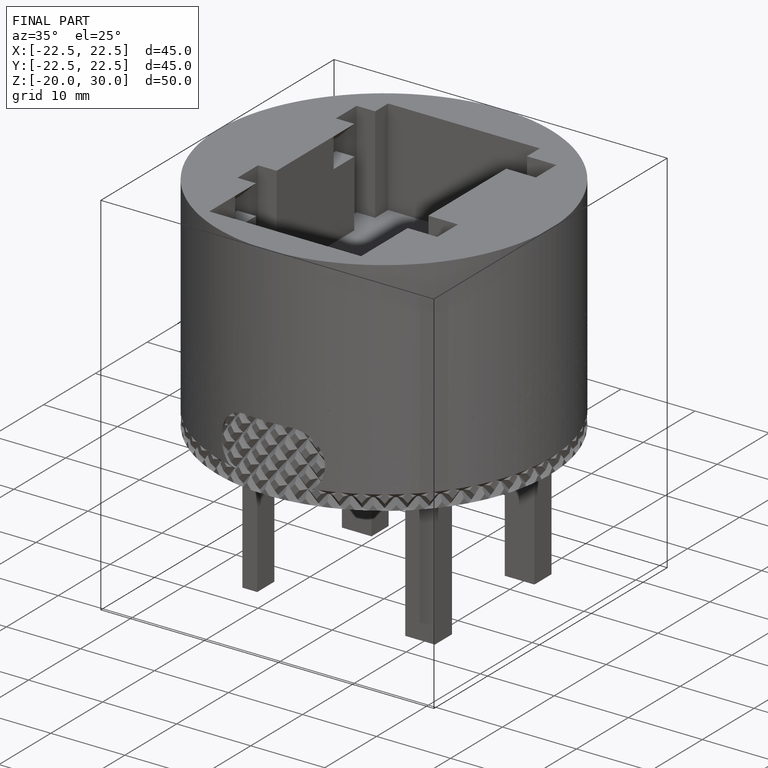
[diagram: finished part — iso view with bounding-box wireframe]
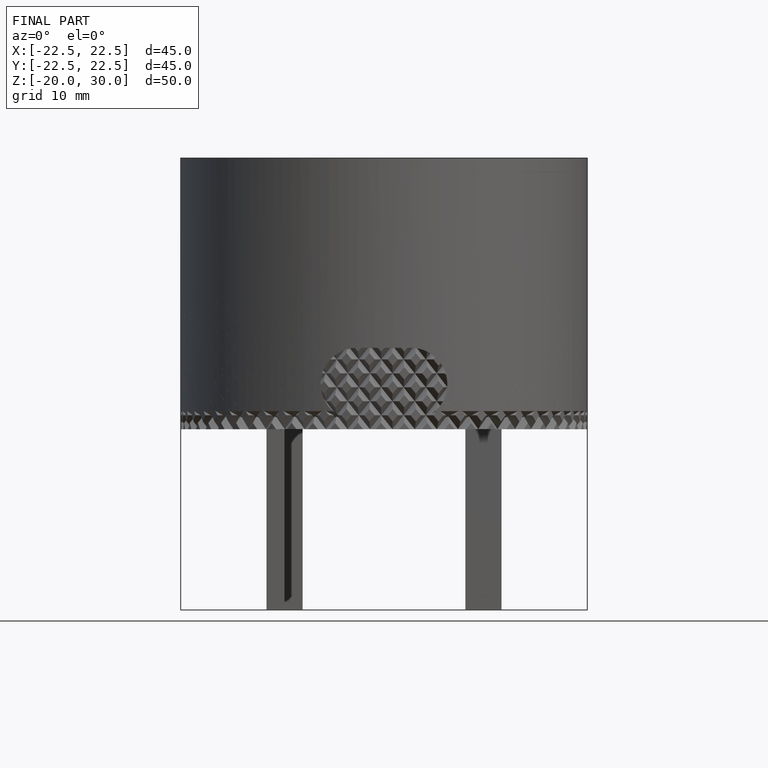
[diagram: finished part — front view with bounding-box wireframe]
